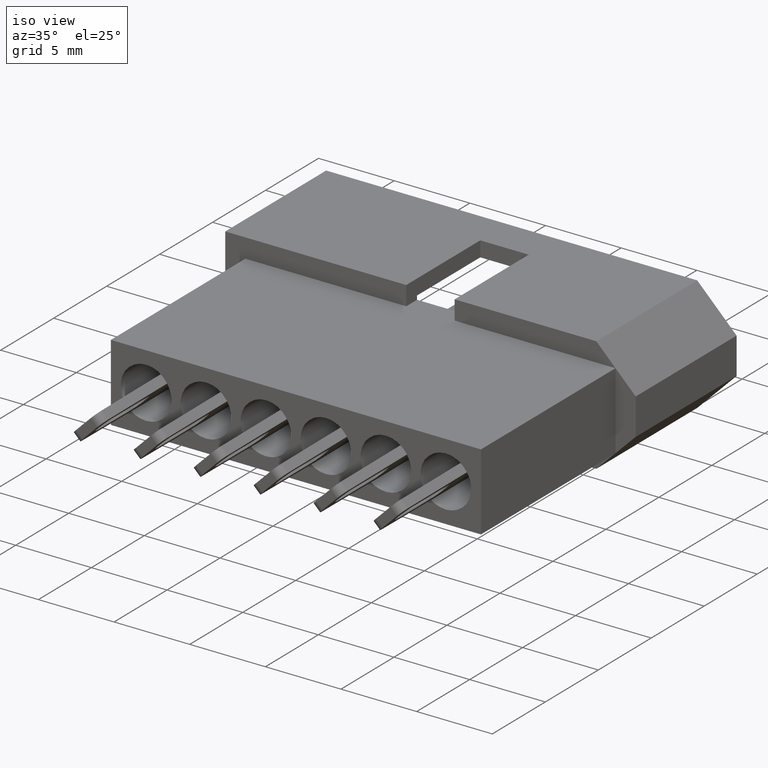
[diagram: clean part render]
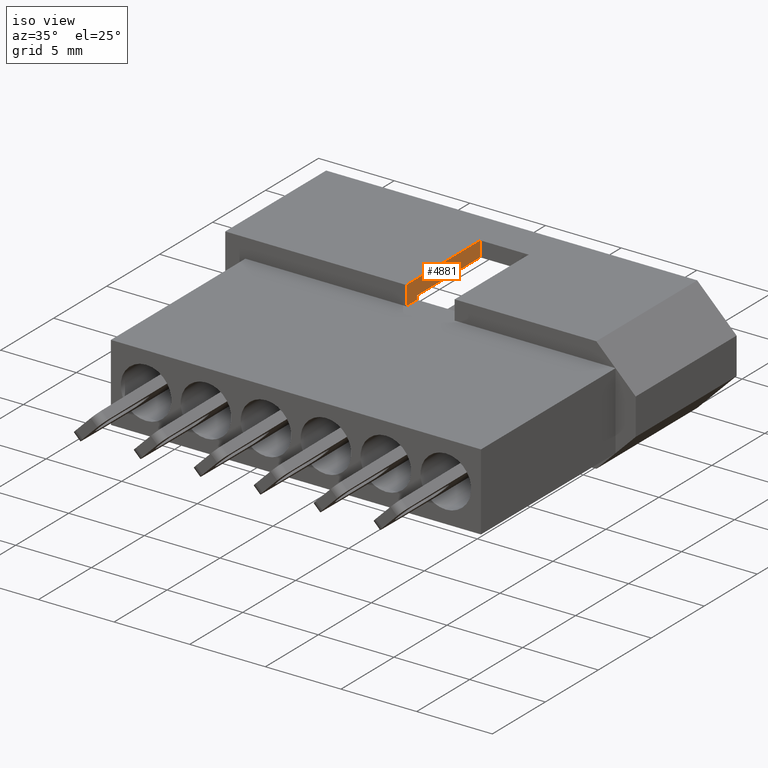
[diagram: same view with one face highlighted and labeled with its STEP entity id]
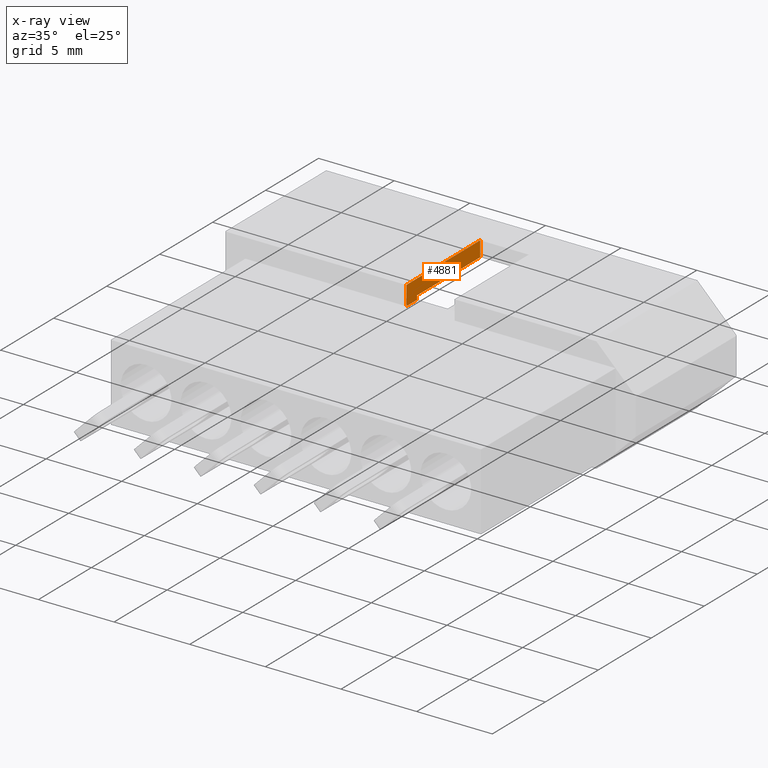
[diagram: x-ray of the same camera — body ghosted, the highlighted face saturated]
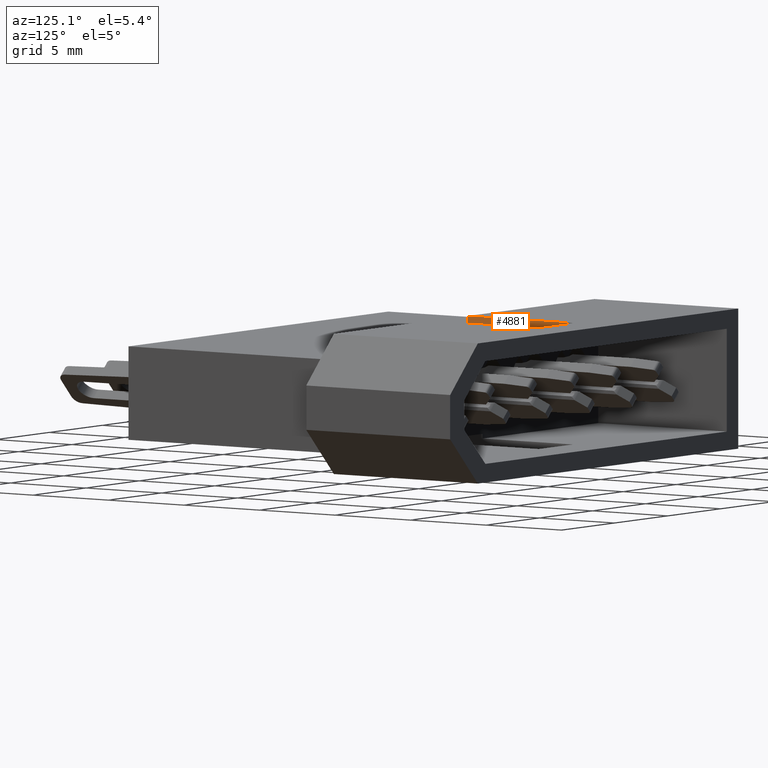
[diagram: same view with one face highlighted and labeled with its STEP entity id]
A machine part, iso view. The second image highlights one B-rep face of the part: STEP entity #4881.
The next image is the same camera in x-ray: the body ghosted, the highlighted face saturated — about 0% of this face is hidden behind the body in this view.
A second angle (auxiliary view) of the same face is appended — the face is thin or edge-on in the first view.
In plain terms, the highlighted planar face has unit normal (-1, 0, 0).
Its self-contained STEP definition (entity closure, byte-faithful):
#53 = VERTEX_POINT ( 'NONE', #9117 ) ;
#366 = DIRECTION ( 'NONE',  ( -2.483498176058421200E-016, -1.000000000000000000, 2.842684152039410100E-032 ) ) ;
#484 = AXIS2_PLACEMENT_3D ( 'NONE', #8267, #3892, #7526 ) ;
#533 = LINE ( 'NONE', #7385, #4163 ) ;
#651 = EDGE_CURVE ( 'NONE', #2913, #6152, #533, .T. ) ;
#903 = FACE_OUTER_BOUND ( 'NONE', #1982, .T. ) ;
#1069 = CARTESIAN_POINT ( 'NONE',  ( 8.305799999999996100, 6.985000000000000300, 2.539999999999999600 ) ) ;
#1396 = VECTOR ( 'NONE', #8475, 1000.000000000000000 ) ;
#1629 = DIRECTION ( 'NONE',  ( -2.483498176058421200E-016, -1.000000000000000000, 0.0000000000000000000 ) ) ;
#1801 = VERTEX_POINT ( 'NONE', #7045 ) ;
#1832 = CARTESIAN_POINT ( 'NONE',  ( 8.305799999999994300, 1.015999999999999600, 2.794000000000000000 ) ) ;
#1870 = ORIENTED_EDGE ( 'NONE', *, *, #2149, .F. ) ;
#1894 = VECTOR ( 'NONE', #8605, 1000.000000000000000 ) ;
#1982 = EDGE_LOOP ( 'NONE', ( #9336, #5041, #4729, #2806, #2805, #1870 ) ) ;
#2149 = EDGE_CURVE ( 'NONE', #53, #5043, #7961, .T. ) ;
#2227 = EDGE_CURVE ( 'NONE', #5043, #2913, #2875, .T. ) ;
#2429 = PLANE ( 'NONE',  #484 ) ;
#2583 = DIRECTION ( 'NONE',  ( -0.0000000000000000000, -0.0000000000000000000, 1.000000000000000000 ) ) ;
#2658 = VECTOR ( 'NONE', #6134, 1000.000000000000000 ) ;
#2805 = ORIENTED_EDGE ( 'NONE', *, *, #2227, .F. ) ;
#2806 = ORIENTED_EDGE ( 'NONE', *, *, #651, .F. ) ;
#2875 = LINE ( 'NONE', #6317, #1396 ) ;
#2913 = VERTEX_POINT ( 'NONE', #6479 ) ;
#3358 = VECTOR ( 'NONE', #2583, 1000.000000000000000 ) ;
#3558 = VERTEX_POINT ( 'NONE', #4850 ) ;
#3892 = DIRECTION ( 'NONE',  ( -1.000000000000000000, 2.483498176058421200E-016, 0.0000000000000000000 ) ) ;
#3926 = CARTESIAN_POINT ( 'NONE',  ( 8.305799999999994300, 0.0000000000000000000, 2.539999999999999600 ) ) ;
#4163 = VECTOR ( 'NONE', #1629, 1000.000000000000000 ) ;
#4729 = ORIENTED_EDGE ( 'NONE', *, *, #8239, .F. ) ;
#4850 = CARTESIAN_POINT ( 'NONE',  ( 8.305799999999994300, 0.0000000000000000000, 3.809999999999999600 ) ) ;
#4881 = ADVANCED_FACE ( 'NONE', ( #903 ), #2429, .F. ) ;
#4894 = CARTESIAN_POINT ( 'NONE',  ( 8.305799999999996100, 6.985000000000000300, 3.809999999999999600 ) ) ;
#5041 = ORIENTED_EDGE ( 'NONE', *, *, #7721, .T. ) ;
#5043 = VERTEX_POINT ( 'NONE', #1832 ) ;
#5392 = CARTESIAN_POINT ( 'NONE',  ( 8.305799999999994300, 1.016000000000002700, 2.793999999999998700 ) ) ;
#5504 = LINE ( 'NONE', #3926, #3358 ) ;
#6134 = DIRECTION ( 'NONE',  ( -0.0000000000000000000, -0.0000000000000000000, 1.000000000000000000 ) ) ;
#6152 = VERTEX_POINT ( 'NONE', #9153 ) ;
#6317 = CARTESIAN_POINT ( 'NONE',  ( 8.305799999999994300, 1.015999999999999600, 0.0000000000000000000 ) ) ;
#6479 = CARTESIAN_POINT ( 'NONE',  ( 8.305799999999994300, 1.015999999999999600, 2.539999999999999600 ) ) ;
#7045 = CARTESIAN_POINT ( 'NONE',  ( 8.305799999999996100, 6.985000000000000300, 3.809999999999999600 ) ) ;
#7098 = LINE ( 'NONE', #4894, #1894 ) ;
#7385 = CARTESIAN_POINT ( 'NONE',  ( 8.305799999999996100, 6.985000000000000300, 2.539999999999999600 ) ) ;
#7526 = DIRECTION ( 'NONE',  ( -2.483498176058421200E-016, -1.000000000000000000, 0.0000000000000000000 ) ) ;
#7721 = EDGE_CURVE ( 'NONE', #1801, #3558, #7098, .T. ) ;
#7961 = LINE ( 'NONE', #5392, #8201 ) ;
#8201 = VECTOR ( 'NONE', #366, 1000.000000000000000 ) ;
#8239 = EDGE_CURVE ( 'NONE', #6152, #3558, #5504, .T. ) ;
#8267 = CARTESIAN_POINT ( 'NONE',  ( 8.305799999999996100, 6.985000000000000300, 2.539999999999999600 ) ) ;
#8475 = DIRECTION ( 'NONE',  ( 0.0000000000000000000, 0.0000000000000000000, -1.000000000000000000 ) ) ;
#8551 = LINE ( 'NONE', #1069, #2658 ) ;
#8605 = DIRECTION ( 'NONE',  ( -2.483498176058421200E-016, -1.000000000000000000, 0.0000000000000000000 ) ) ;
#8971 = EDGE_CURVE ( 'NONE', #53, #1801, #8551, .T. ) ;
#9117 = CARTESIAN_POINT ( 'NONE',  ( 8.305799999999996100, 6.985000000000000300, 2.793999999999998700 ) ) ;
#9153 = CARTESIAN_POINT ( 'NONE',  ( 8.305799999999992500, 0.0000000000000000000, 2.540000000000000000 ) ) ;
#9336 = ORIENTED_EDGE ( 'NONE', *, *, #8971, .T. ) ;